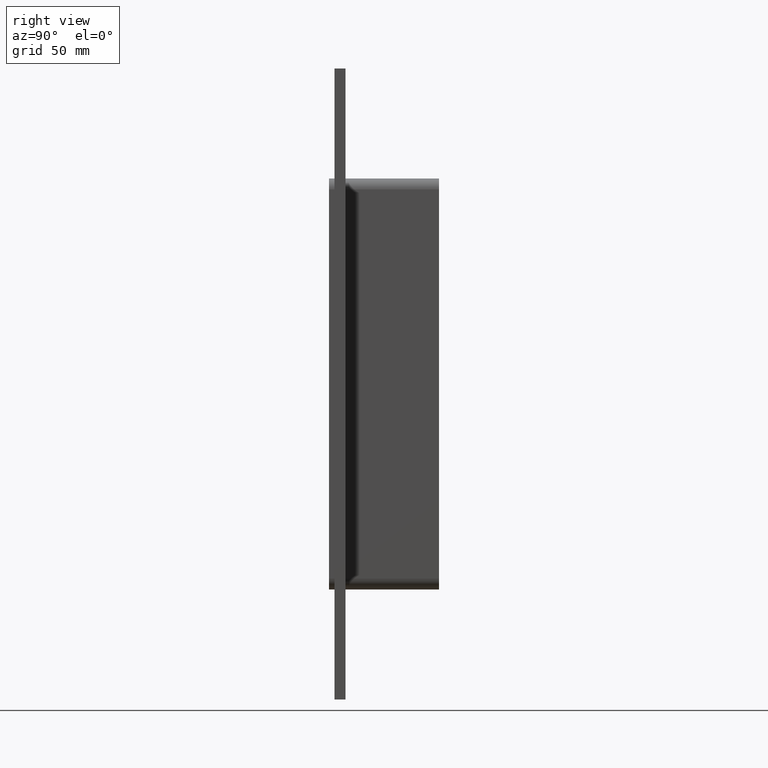
[diagram: clean part render]
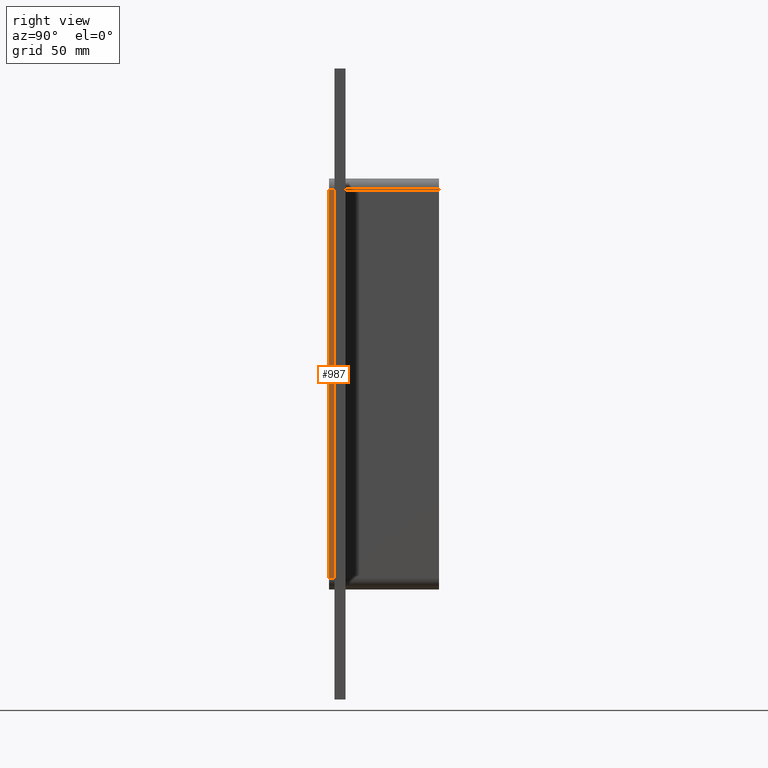
[diagram: same view with one face highlighted and labeled with its STEP entity id]
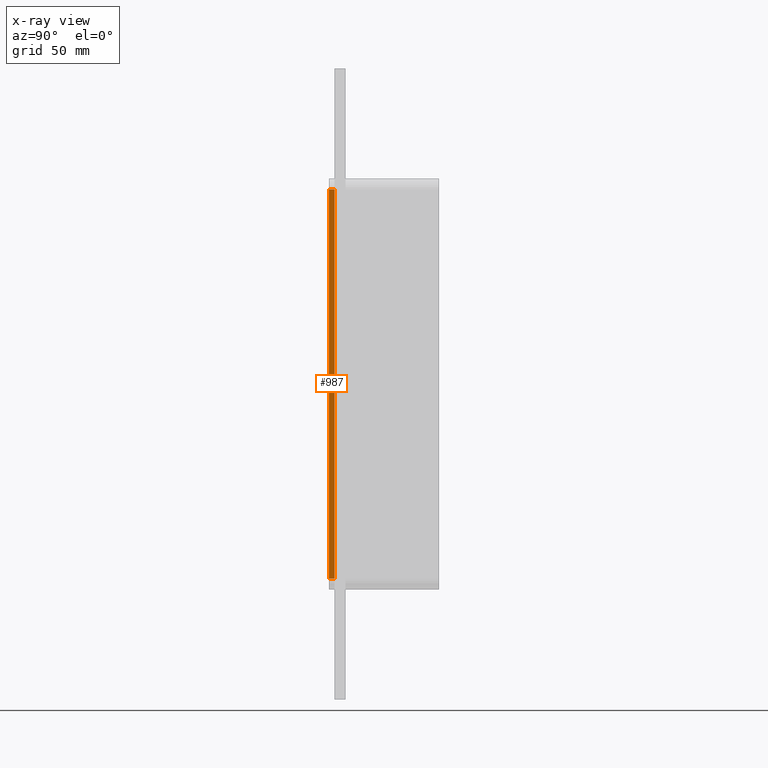
[diagram: x-ray of the same camera — body ghosted, the highlighted face saturated]
A machine part, right view. The second image highlights one B-rep face of the part: STEP entity #987.
The next image is the same camera in x-ray: the body ghosted, the highlighted face saturated — about 0% of this face is hidden behind the body in this view.
In plain terms, the highlighted planar face has unit normal (1, 0, 0).
Its self-contained STEP definition (entity closure, byte-faithful):
#766=CARTESIAN_POINT('',(36.250000000000007,0.0,106.00000000000003));
#767=VERTEX_POINT('',#766);
#775=CARTESIAN_POINT('',(36.250000000000007,0.0,-106.00000000000001));
#776=VERTEX_POINT('',#775);
#777=CARTESIAN_POINT('',(36.250000000000007,0.0,-106.00000000000001));
#778=DIRECTION('',(0.0,0.0,1.0));
#779=VECTOR('',#778,212.00000000000006);
#780=LINE('',#777,#779);
#781=EDGE_CURVE('',#776,#767,#780,.T.);
#914=CARTESIAN_POINT('',(36.250000000000007,-3.0,106.00000000000003));
#915=VERTEX_POINT('',#914);
#923=CARTESIAN_POINT('',(36.250000000000007,-3.0,106.00000000000003));
#924=DIRECTION('',(0.0,1.0,0.0));
#925=VECTOR('',#924,3.0);
#926=LINE('',#923,#925);
#927=EDGE_CURVE('',#915,#767,#926,.T.);
#964=CARTESIAN_POINT('',(36.250000000000007,0.0,112.00000000000003));
#965=DIRECTION('',(1.0,0.0,0.0));
#966=DIRECTION('',(0.0,0.0,-1.0));
#967=AXIS2_PLACEMENT_3D('',#964,#965,#966);
#968=PLANE('',#967);
#969=ORIENTED_EDGE('',*,*,#781,.T.);
#970=ORIENTED_EDGE('',*,*,#927,.F.);
#971=CARTESIAN_POINT('',(36.250000000000007,-3.0,-106.00000000000001));
#972=VERTEX_POINT('',#971);
#973=CARTESIAN_POINT('',(36.250000000000007,-3.0,-106.00000000000003));
#974=DIRECTION('',(0.0,0.0,1.0));
#975=VECTOR('',#974,212.00000000000006);
#976=LINE('',#973,#975);
#977=EDGE_CURVE('',#972,#915,#976,.T.);
#978=ORIENTED_EDGE('',*,*,#977,.F.);
#979=CARTESIAN_POINT('',(36.250000000000007,0.0,-106.00000000000001));
#980=DIRECTION('',(0.0,-1.0,0.0));
#981=VECTOR('',#980,3.0);
#982=LINE('',#979,#981);
#983=EDGE_CURVE('',#776,#972,#982,.T.);
#984=ORIENTED_EDGE('',*,*,#983,.F.);
#985=EDGE_LOOP('',(#969,#970,#978,#984));
#986=FACE_OUTER_BOUND('',#985,.T.);
#987=ADVANCED_FACE('',(#986),#968,.T.);